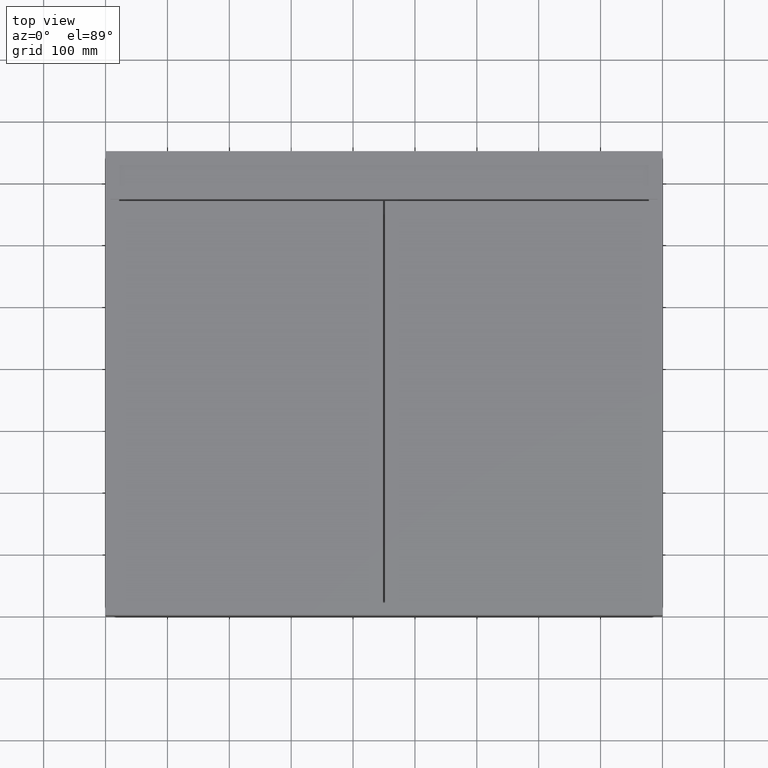
[diagram: clean part render]
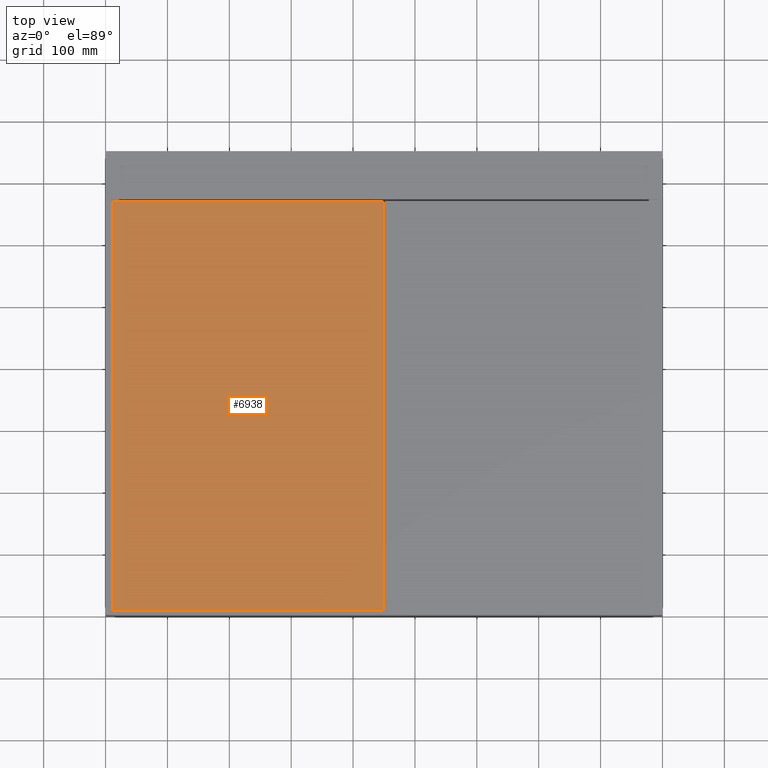
[diagram: same view with one face highlighted and labeled with its STEP entity id]
A machine part, top view. The second image highlights one B-rep face of the part: STEP entity #6938.
In plain terms, the highlighted planar face has unit normal (0, -0, 1).
Its self-contained STEP definition (entity closure, byte-faithful):
#311 = LINE ( 'NONE', #3709, #8774 ) ;
#681 = CARTESIAN_POINT ( 'NONE',  ( 11.00000000000001066, 668.9999000000001388, -8.326672684688674053E-14 ) ) ;
#739 = ORIENTED_EDGE ( 'NONE', *, *, #2710, .T. ) ;
#794 = DIRECTION ( 'NONE',  ( 1.000000000000000000, 2.012333572078638029E-36, 0.0000000000000000000 ) ) ;
#953 = EDGE_LOOP ( 'NONE', ( #7643, #739, #3503, #1702 ) ) ;
#1015 = DIRECTION ( 'NONE',  ( -8.398057432574168212E-17, 1.000000000000000000, 0.0000000000000000000 ) ) ;
#1019 = LINE ( 'NONE', #4409, #9229 ) ;
#1634 = PLANE ( 'NONE',  #8202 ) ;
#1702 = ORIENTED_EDGE ( 'NONE', *, *, #4548, .T. ) ;
#2710 = EDGE_CURVE ( 'NONE', #4184, #3190, #311, .T. ) ;
#3190 = VERTEX_POINT ( 'NONE', #9851 ) ;
#3503 = ORIENTED_EDGE ( 'NONE', *, *, #10818, .T. ) ;
#3709 = CARTESIAN_POINT ( 'NONE',  ( 11.00000000000006573, 8.000000000000007105, -8.326672684688674053E-14 ) ) ;
#4007 = LINE ( 'NONE', #7427, #8194 ) ;
#4184 = VERTEX_POINT ( 'NONE', #8602 ) ;
#4409 = CARTESIAN_POINT ( 'NONE',  ( 11.00000000000001066, 668.9999000000001388, -8.326672684688674053E-14 ) ) ;
#4548 = EDGE_CURVE ( 'NONE', #8203, #9410, #1019, .T. ) ;
#4552 = CARTESIAN_POINT ( 'NONE',  ( 448.5000000000000000, 668.9999000000001388, -8.326672684688674053E-14 ) ) ;
#5028 = CARTESIAN_POINT ( 'NONE',  ( 0.0000000000000000000, 0.0000000000000000000, -8.326672684688674053E-14 ) ) ;
#5257 = LINE ( 'NONE', #8682, #7016 ) ;
#6938 = ADVANCED_FACE ( 'NONE', ( #9286 ), #1634, .T. ) ;
#7016 = VECTOR ( 'NONE', #1015, 1000.000000000000000 ) ;
#7131 = DIRECTION ( 'NONE',  ( 1.000000000000000000, 2.012333572078638029E-36, 0.0000000000000000000 ) ) ;
#7427 = CARTESIAN_POINT ( 'NONE',  ( 11.00000000000001066, 668.9999000000001388, -8.326672684688674053E-14 ) ) ;
#7643 = ORIENTED_EDGE ( 'NONE', *, *, #7914, .T. ) ;
#7840 = DIRECTION ( 'NONE',  ( -1.000000000000000000, -2.012333572078638029E-36, 0.0000000000000000000 ) ) ;
#7914 = EDGE_CURVE ( 'NONE', #9410, #4184, #4007, .T. ) ;
#8194 = VECTOR ( 'NONE', #10830, 1000.000000000000000 ) ;
#8202 = AXIS2_PLACEMENT_3D ( 'NONE', #5028, #8450, #794 ) ;
#8203 = VERTEX_POINT ( 'NONE', #4552 ) ;
#8450 = DIRECTION ( 'NONE',  ( 0.0000000000000000000, -0.0000000000000000000, 1.000000000000000000 ) ) ;
#8602 = CARTESIAN_POINT ( 'NONE',  ( 11.00000000000006573, 8.000000000000007105, -8.326672684688674053E-14 ) ) ;
#8682 = CARTESIAN_POINT ( 'NONE',  ( 448.5000000000000000, 668.9999000000001388, -8.326672684688674053E-14 ) ) ;
#8774 = VECTOR ( 'NONE', #7131, 1000.000000000000000 ) ;
#9229 = VECTOR ( 'NONE', #7840, 1000.000000000000000 ) ;
#9286 = FACE_OUTER_BOUND ( 'NONE', #953, .T. ) ;
#9410 = VERTEX_POINT ( 'NONE', #681 ) ;
#9851 = CARTESIAN_POINT ( 'NONE',  ( 448.5000000000000568, 8.000000000000007105, -8.326672684688674053E-14 ) ) ;
#10818 = EDGE_CURVE ( 'NONE', #3190, #8203, #5257, .T. ) ;
#10830 = DIRECTION ( 'NONE',  ( 1.233464685409330925E-16, -1.000000000000000000, 0.0000000000000000000 ) ) ;